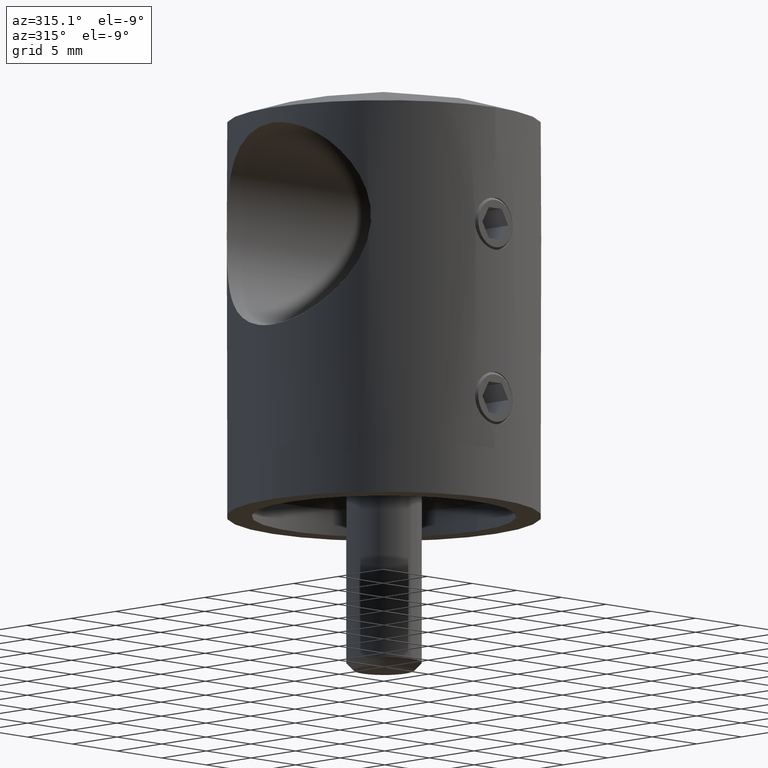
[diagram: clean part render]
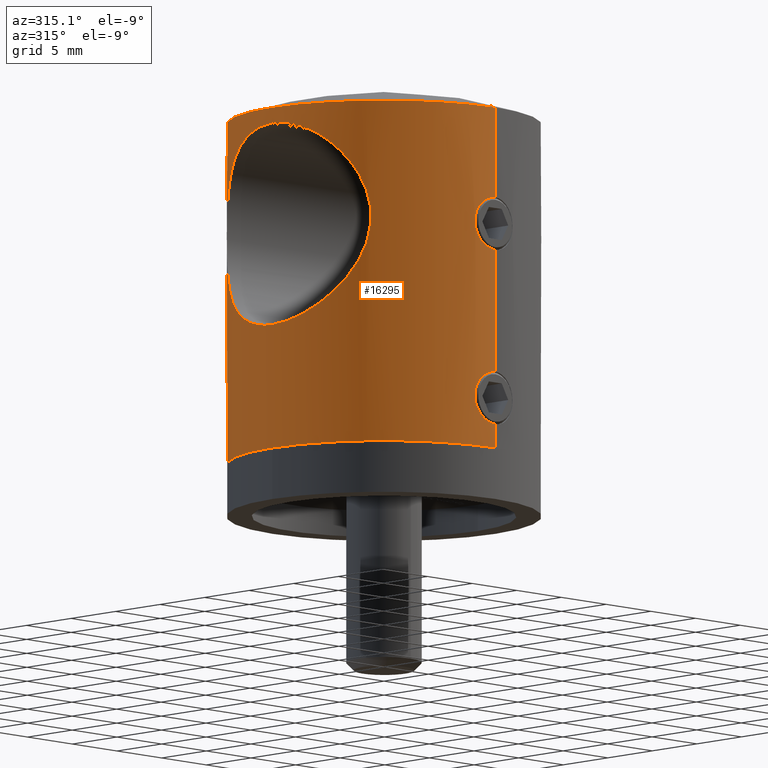
[diagram: same view with one face highlighted and labeled with its STEP entity id]
A machine part, auxiliary view. The second image highlights one B-rep face of the part: STEP entity #16295.
In plain terms, the highlighted cylindrical surface (partial cylindrical patch) has radius 12.5 mm, axis along (0, 0, -1).
Its self-contained STEP definition (entity closure, byte-faithful):
#40 = CARTESIAN_POINT ( 'NONE',  ( -12.22070116454564648, -2.675759442852999825, 10.33630604654240059 ) ) ;
#220 = CARTESIAN_POINT ( 'NONE',  ( -1.292831960822521387, -12.43448438498407072, 16.32272558053074363 ) ) ;
#372 = CARTESIAN_POINT ( 'NONE',  ( -10.72277615019983799, -6.433386929966105505, 22.94845093989070506 ) ) ;
#494 = CARTESIAN_POINT ( 'NONE',  ( 1.530808400947094187E-15, -12.50000000000000000, 20.09999999999998721 ) ) ;
#642 = LINE ( 'NONE', #7840, #19666 ) ;
#761 = CARTESIAN_POINT ( 'NONE',  ( 0.000000000000000000, 2.511058393382138300E-15, -3.469446951953614189E-15 ) ) ;
#877 = EDGE_LOOP ( 'NONE', ( #12330, #13773 ) ) ;
#1064 = CARTESIAN_POINT ( 'NONE',  ( -1.281603546142738415, -12.43465773738692448, 5.669267826619059036 ) ) ;
#1126 = CARTESIAN_POINT ( 'NONE',  ( -0.6802983101495034823, -12.48211517639015788, 2.008545626036335463 ) ) ;
#1187 = CARTESIAN_POINT ( 'NONE',  ( -1.992762697854679299, -12.34024839959371533, 3.323402791177527682 ) ) ;
#1228 = CARTESIAN_POINT ( 'NONE',  ( -1.669446844424485210, -12.38825472392713323, 19.28128412325600749 ) ) ;
#1301 = CARTESIAN_POINT ( 'NONE',  ( -12.02870553853695590, 3.409507870961614007, 25.35231208705370065 ) ) ;
#1349 = ORIENTED_EDGE ( 'NONE', *, *, #10191, .T. ) ;
#1364 = CARTESIAN_POINT ( 'NONE',  ( -9.951367014874429984, 7.565489801909766499, 15.09432320934741512 ) ) ;
#1489 = CARTESIAN_POINT ( 'NONE',  ( -9.701591336837370960, 7.882512463272437486, 16.11616671281910129 ) ) ;
#1532 = AXIS2_PLACEMENT_3D ( 'NONE', #761, #16381, #13219 ) ;
#1632 = CARTESIAN_POINT ( 'NONE',  ( -9.880370690349275620, -7.657572029206112241, 20.65384175088192720 ) ) ;
#1765 = CARTESIAN_POINT ( 'NONE',  ( -9.520085792176001149, -8.100491771003918373, 18.54183677624777005 ) ) ;
#1840 = CARTESIAN_POINT ( 'NONE',  ( -9.567435330464274301, -8.045733034332240408, 19.08221628877203102 ) ) ;
#2102 = VERTEX_POINT ( 'NONE', #4783 ) ;
#2382 = EDGE_CURVE ( 'NONE', #13660, #14748, #14000, .T. ) ;
#2520 = FACE_OUTER_BOUND ( 'NONE', #3515, .T. ) ;
#2523 = CARTESIAN_POINT ( 'NONE',  ( -0.5474908082748943805, -12.48874150837816188, 1.967912346927876310 ) ) ;
#2656 = CARTESIAN_POINT ( 'NONE',  ( -1.670798748957216473, -12.38807301078725409, 2.720435620869849025 ) ) ;
#2775 = CARTESIAN_POINT ( 'NONE',  ( -9.520973359971113936, 8.099448548831343686, 18.55185238678192761 ) ) ;
#2841 = CARTESIAN_POINT ( 'NONE',  ( -11.19526627058776391, 5.563968491168951758, 23.89224060950516915 ) ) ;
#2852 = CARTESIAN_POINT ( 'NONE',  ( -10.35700933999127038, -7.007021317796643167, 13.90412509189336632 ) ) ;
#2900 = CARTESIAN_POINT ( 'NONE',  ( -12.50000000000000000, -3.351643804085334193E-17, 9.899999999999998579 ) ) ;
#2918 = CARTESIAN_POINT ( 'NONE',  ( -12.49999999999999822, -0.5528784438871109375, 9.900000000000000355 ) ) ;
#2958 = CARTESIAN_POINT ( 'NONE',  ( -2.033241785620695907, -12.33355821179406320, 17.45712843739983811 ) ) ;
#2969 = CARTESIAN_POINT ( 'NONE',  ( -10.17952911167893504, 7.258907725143648015, 21.63223083296024640 ) ) ;
#3039 = CARTESIAN_POINT ( 'NONE',  ( -11.28850500002958235, 5.383832730285661228, 11.92646162018588107 ) ) ;
#3118 = CARTESIAN_POINT ( 'NONE',  ( -12.46351380821524657, -1.093711065827359663, 9.955989529528133986 ) ) ;
#3189 = CARTESIAN_POINT ( 'NONE',  ( -12.50000000000000000, 9.921802743039409202E-16, 26.09999999999999787 ) ) ;
#3392 = CARTESIAN_POINT ( 'NONE',  ( -11.72524645729331638, -4.338365169962789203, 24.84511145860963666 ) ) ;
#3515 = EDGE_LOOP ( 'NONE', ( #12781, #1349, #6579, #17195, #9411, #15858, #6282, #18544 ) ) ;
#3548 = VERTEX_POINT ( 'NONE', #12794 ) ;
#3940 = LINE ( 'NONE', #9890, #6581 ) ;
#4314 = CARTESIAN_POINT ( 'NONE',  ( -9.747884632849883602, 7.826158140951158693, 20.15828844926502939 ) ) ;
#4373 = CARTESIAN_POINT ( 'NONE',  ( -10.72008468265404701, 6.437815186178183602, 13.05742670192375776 ) ) ;
#4390 = CARTESIAN_POINT ( 'NONE',  ( -10.18366656129051684, -7.253124976668678059, 14.35630555257476537 ) ) ;
#4434 = CARTESIAN_POINT ( 'NONE',  ( -1.580836478937786005, -12.40001885819545713, 19.38913205608097812 ) ) ;
#4504 = CARTESIAN_POINT ( 'NONE',  ( -10.72337136915052191, 6.432384334378388857, 22.94970672417606750 ) ) ;
#4724 = CARTESIAN_POINT ( 'NONE',  ( -9.520717587152519812, -8.099749177061479344, 17.71812808805937678 ) ) ;
#4764 = CARTESIAN_POINT ( 'NONE',  ( -0.1389824923851660510, -12.49999999999999822, 15.89999999999999325 ) ) ;
#4783 = CARTESIAN_POINT ( 'NONE',  ( 1.530808498934191916E-15, -12.50000000000000355, 27.32456029873169356 ) ) ;
#4854 = CARTESIAN_POINT ( 'NONE',  ( -11.29218558167254471, -5.376423904100856355, 24.08051922992815719 ) ) ;
#4895 = CIRCLE ( 'NONE', #1532, 12.49999999999999822 ) ;
#4928 = CARTESIAN_POINT ( 'NONE',  ( -12.02760166335872505, -3.413435212782874206, 25.35050886855137620 ) ) ;
#4954 = LINE ( 'NONE', #13450, #10737 ) ;
#5591 = EDGE_CURVE ( 'NONE', #10698, #6878, #14404, .T. ) ;
#5610 = CARTESIAN_POINT ( 'NONE',  ( -2.033241785620692799, -12.33355821179406320, 3.457128437399843435 ) ) ;
#5748 = CARTESIAN_POINT ( 'NONE',  ( -1.059040836926602003, -12.45762628977003317, 2.166092215184475478 ) ) ;
#5808 = CARTESIAN_POINT ( 'NONE',  ( 1.530808400950249631E-15, -12.49999999999999822, 6.099999999999991651 ) ) ;
#5863 = CARTESIAN_POINT ( 'NONE',  ( -11.47028590896113265, 4.972980621955419345, 24.39895530642348831 ) ) ;
#5927 = CARTESIAN_POINT ( 'NONE',  ( -11.47046356455962979, 4.989251766208270489, 11.59772572849088590 ) ) ;
#5944 = CARTESIAN_POINT ( 'NONE',  ( -9.748972396418562170, -7.824788271344586654, 15.83832442540469465 ) ) ;
#5987 = CARTESIAN_POINT ( 'NONE',  ( -9.520042000924568981, 8.100543242096659213, 17.46445631841540447 ) ) ;
#6057 = CARTESIAN_POINT ( 'NONE',  ( -10.91395067144981468, 6.107510191931585730, 12.65473643547653637 ) ) ;
#6070 = LINE ( 'NONE', #11536, #18867 ) ;
#6121 = CARTESIAN_POINT ( 'NONE',  ( -12.46342989338710971, 1.097403203460833199, 9.956105301296767962 ) ) ;
#6282 = ORIENTED_EDGE ( 'NONE', *, *, #10936, .F. ) ;
#6334 = CARTESIAN_POINT ( 'NONE',  ( -9.950403799970377605, -7.566749653861295499, 20.90234311726210237 ) ) ;
#6472 = CARTESIAN_POINT ( 'NONE',  ( -12.50000000000000711, -0.2724670366685521539, 26.10000000000000853 ) ) ;
#6540 = CARTESIAN_POINT ( 'NONE',  ( -10.91406870405932850, -6.107576731453589147, 23.34566689679782314 ) ) ;
#6579 = ORIENTED_EDGE ( 'NONE', *, *, #14859, .T. ) ;
#6581 = VECTOR ( 'NONE', #19268, 1000.000000000000000 ) ;
#6649 = DIRECTION ( 'NONE',  ( 0.000000000000000000, 1.000000000000000000, 2.775557561562891351E-16 ) ) ;
#6675 = CARTESIAN_POINT ( 'NONE',  ( -1.472924517894627525E-17, -12.49999999999999822, 1.900000000000005018 ) ) ;
#6794 = CARTESIAN_POINT ( 'NONE',  ( 1.530808498934191521E-15, -12.49999999999999645, -5.213237502913431292E-15 ) ) ;
#6862 = CYLINDRICAL_SURFACE ( 'NONE', #7258, 12.50000000000000000 ) ;
#6878 = VERTEX_POINT ( 'NONE', #11653 ) ;
#7239 = CARTESIAN_POINT ( 'NONE',  ( -1.387160506701218265, -12.42317581721323094, 5.582566766686510640 ) ) ;
#7258 = AXIS2_PLACEMENT_3D ( 'NONE', #11446, #11245, #15988 ) ;
#7303 = CARTESIAN_POINT ( 'NONE',  ( -1.821665953450995801, -12.36678782163335732, 5.053695840792909344 ) ) ;
#7369 = CARTESIAN_POINT ( 'NONE',  ( -1.992047017919823970, -12.34036526571288128, 4.678775810402825641 ) ) ;
#7409 = CARTESIAN_POINT ( 'NONE',  ( -2.086551808546024844, -12.32465138950227335, 17.72598678402805561 ) ) ;
#7423 = DIRECTION ( 'NONE',  ( -0.000000000000000000, 1.395032440767854392E-16, -1.000000000000000000 ) ) ;
#7450 = EDGE_CURVE ( 'NONE', #2102, #13660, #642, .T. ) ;
#7475 = CARTESIAN_POINT ( 'NONE',  ( -11.95753491745220209, 3.650557408356767120, 25.23552915202265368 ) ) ;
#7544 = CARTESIAN_POINT ( 'NONE',  ( -11.55808065896021652, 4.765924682120230571, 24.55465348153382266 ) ) ;
#7675 = CARTESIAN_POINT ( 'NONE',  ( -10.35676433114384487, 7.007402823801430536, 22.09529859051693634 ) ) ;
#7803 = CARTESIAN_POINT ( 'NONE',  ( -1.823189292361670155, -12.36656387944243995, 16.94888903341583841 ) ) ;
#7840 = CARTESIAN_POINT ( 'NONE',  ( 1.530808498934191521E-15, -12.50000000000000000, 17.99999999999999645 ) ) ;
#7920 = DIRECTION ( 'NONE',  ( -0.000000000000000000, 1.395032440767854392E-16, -1.000000000000000000 ) ) ;
#7969 = DIRECTION ( 'NONE',  ( -0.000000000000000000, 1.395032440767854392E-16, -1.000000000000000000 ) ) ;
#8018 = CARTESIAN_POINT ( 'NONE',  ( -12.45529628258914556, -1.091060948458979496, 26.03086874605837409 ) ) ;
#8759 = CARTESIAN_POINT ( 'NONE',  ( 1.151064588017623482E-15, -12.50000000000000000, 15.89999999999999680 ) ) ;
#8763 = EDGE_CURVE ( 'NONE', #18632, #13263, #9858, .T. ) ;
#8831 = CARTESIAN_POINT ( 'NONE',  ( -1.887587319264240504, -12.35677335900392393, 3.069461948601636792 ) ) ;
#8889 = CARTESIAN_POINT ( 'NONE',  ( 1.530808400950249631E-15, -12.49999999999999822, 6.099999999999991651 ) ) ;
#8944 = CARTESIAN_POINT ( 'NONE',  ( -10.18033033413549227, 7.257839893384701035, 14.36515003058661755 ) ) ;
#9000 = EDGE_CURVE ( 'NONE', #6878, #10698, #11421, .T. ) ;
#9090 = CARTESIAN_POINT ( 'NONE',  ( -9.876153600626508933, 7.666560138321562690, 20.66621413835348875 ) ) ;
#9148 = CARTESIAN_POINT ( 'NONE',  ( -12.49112763227392442, 0.5438777286051759141, 26.08632855439660503 ) ) ;
#9382 = AXIS2_PLACEMENT_3D ( 'NONE', #14277, #7920, #6649 ) ;
#9411 = ORIENTED_EDGE ( 'NONE', *, *, #19764, .F. ) ;
#9569 = CARTESIAN_POINT ( 'NONE',  ( -10.17867724942867014, -7.260129053857307113, 21.63011152713685448 ) ) ;
#9635 = CARTESIAN_POINT ( 'NONE',  ( -9.580336641796414199, -8.029227403483567116, 16.89725103376263249 ) ) ;
#9716 = CARTESIAN_POINT ( 'NONE',  ( 0.000000000000000000, 12.49999999999999822, 27.32456029873170067 ) ) ;
#9858 = B_SPLINE_CURVE_WITH_KNOTS ( 'NONE', 3,
 ( #8889, #13517, #11949, #19766, #19509, #1064, #7239, #16675, #10529, #7303, #14867, #7369, #10397, #14930, #14998, #11760, #18136, #5610, #1187, #8831, #13325, #2656, #15128, #11823, #5748, #1126, #2523, #16546, #18207, #15062 ),
 .UNSPECIFIED., .F., .F.,
 ( 4, 2, 2, 2, 2, 2, 2, 2, 2, 2, 2, 2, 2, 2, 4 ),
 ( 0.006577226265834314883, 0.007399174158320370384, 0.007810148104563397267, 0.008221122050806424150, 0.008632095997049452768, 0.009043069943292479651, 0.009454043889535506534, 0.009865017835778533417, 0.01027599178202156030, 0.01068696572826458718, 0.01109793967450761233, 0.01150891362075063748, 0.01233086151323669125, 0.01274183545947971639, 0.01315280940572274154 ),
 .UNSPECIFIED. ) ;
#9890 = CARTESIAN_POINT ( 'NONE',  ( 1.530808498934191521E-15, -12.50000000000000000, 17.99999999999999645 ) ) ;
#10191 = EDGE_CURVE ( 'NONE', #2102, #19150, #18628, .T. ) ;
#10373 = CARTESIAN_POINT ( 'NONE',  ( -0.2743003893079631328, -12.50000000000000178, 20.09999999999998366 ) ) ;
#10397 = CARTESIAN_POINT ( 'NONE',  ( -2.032484663200841979, -12.33368337160503891, 4.545663143699836262 ) ) ;
#10437 = CARTESIAN_POINT ( 'NONE',  ( -1.052645575539822076, -12.45612933409646672, 19.82233367382803380 ) ) ;
#10512 = CARTESIAN_POINT ( 'NONE',  ( -12.22154858838973190, 2.672405942506479892, 25.66506322666648643 ) ) ;
#10529 = CARTESIAN_POINT ( 'NONE',  ( -1.669446844424482990, -12.38825472392712967, 5.281284123256015484 ) ) ;
#10570 = CARTESIAN_POINT ( 'NONE',  ( -12.35767926092468727, 1.900159969238719881, 10.12129287128905197 ) ) ;
#10628 = CARTESIAN_POINT ( 'NONE',  ( -2.099916014006710352, -12.32235175367555513, 18.14000245874222372 ) ) ;
#10698 = VERTEX_POINT ( 'NONE', #3189 ) ;
#10737 = VECTOR ( 'NONE', #7423, 1000.000000000000000 ) ;
#10779 = CARTESIAN_POINT ( 'NONE',  ( -12.32358639111075149, 2.160796334112375483, 25.82546165938043714 ) ) ;
#10792 = CARTESIAN_POINT ( 'NONE',  ( -10.91686002276924761, -6.102307794144014252, 12.64883266267916362 ) ) ;
#10923 = CARTESIAN_POINT ( 'NONE',  ( -12.32307737004344261, -2.163398512750481562, 25.82466021064913875 ) ) ;
#10936 = EDGE_CURVE ( 'NONE', #14748, #18632, #6070, .T. ) ;
#10971 = CARTESIAN_POINT ( 'NONE',  ( -0.2762664775608866807, -12.49768328457756006, 15.91366271943153698 ) ) ;
#11055 = CARTESIAN_POINT ( 'NONE',  ( -9.700917027979015117, -7.883344374810546284, 19.88059418987725735 ) ) ;
#11245 = DIRECTION ( 'NONE',  ( -0.000000000000000000, 1.395032440767854392E-16, -1.000000000000000000 ) ) ;
#11421 = B_SPLINE_CURVE_WITH_KNOTS ( 'NONE', 3,
 ( #19830, #2918, #3118, #13915, #40, #13711, #16934, #15462, #13651, #10792, #18535, #2852, #4390, #15189, #5944, #16734, #9635, #14119, #4724, #1765, #1840, #11055, #12612, #1632, #6334, #9569, #18880, #372, #6540, #4854, #12416, #3392, #14187, #17137, #4928, #18747, #10923, #13980, #8018, #15733, #6472, #15528 ),
 .UNSPECIFIED., .F., .F.,
 ( 4, 2, 2, 2, 2, 2, 2, 2, 2, 2, 2, 2, 2, 2, 2, 2, 2, 2, 2, 2, 4 ),
 ( 3.246168408128702172E-20, 0.001632328287734290118, 0.003264656575468579368, 0.004896984863202869485, 0.006529313150937157868, 0.008161641438671447119, 0.009793969726405738971, 0.01142629801414002735, 0.01224246215800717762, 0.01305862630187432614, 0.01469095458960861279, 0.01550711873347576132, 0.01632328287734291158, 0.01795561116507721905, 0.01958793945281152998, 0.02122026774054584092, 0.02203643188441299985, 0.02285259602828015185, 0.02448492431601445932, 0.02530108845988160785, 0.02611725260374876331 ),
 .UNSPECIFIED. ) ;
#11446 = CARTESIAN_POINT ( 'NONE',  ( 0.000000000000000000, 0.000000000000000000, 18.00000000000000000 ) ) ;
#11536 = CARTESIAN_POINT ( 'NONE',  ( 1.530808498934191521E-15, -12.50000000000000000, 17.99999999999999645 ) ) ;
#11606 = DIRECTION ( 'NONE',  ( -0.000000000000000000, 1.395032440767854392E-16, -1.000000000000000000 ) ) ;
#11653 = CARTESIAN_POINT ( 'NONE',  ( -12.50000000000000000, -3.351643804085334193E-17, 9.899999999999998579 ) ) ;
#11760 = CARTESIAN_POINT ( 'NONE',  ( -2.100083223394550558, -12.32232325748717905, 3.862528515129717288 ) ) ;
#11823 = CARTESIAN_POINT ( 'NONE',  ( -1.292831960822520276, -12.43448438498407072, 2.322725580530750289 ) ) ;
#11949 = CARTESIAN_POINT ( 'NONE',  ( -0.5510555997337217571, -12.49041604070636780, 6.044797116518989100 ) ) ;
#11985 = CARTESIAN_POINT ( 'NONE',  ( -1.886269248244664576, -12.35697594623954920, 18.93326108111170214 ) ) ;
#11995 = CARTESIAN_POINT ( 'NONE',  ( -11.72613561294977025, 4.336013166652543660, 24.84664225421791528 ) ) ;
#12053 = CARTESIAN_POINT ( 'NONE',  ( -0.9302022205380889863, -12.46598422166854370, 19.88770713018109149 ) ) ;
#12059 = CARTESIAN_POINT ( 'NONE',  ( -12.50000000000000000, 9.921802743039409202E-16, 26.09999999999999787 ) ) ;
#12129 = CARTESIAN_POINT ( 'NONE',  ( -12.50000000000000178, 0.5520462798414251804, 9.899999999999996803 ) ) ;
#12193 = CARTESIAN_POINT ( 'NONE',  ( -2.100083223394554111, -12.32232325748718260, 17.86252851512971773 ) ) ;
#12201 = CARTESIAN_POINT ( 'NONE',  ( -12.42869573539206307, 1.360138927175486234, 25.98963358632725829 ) ) ;
#12264 = CARTESIAN_POINT ( 'NONE',  ( -9.755670522168493619, 7.815819515107556903, 15.85656383207582287 ) ) ;
#12330 = ORIENTED_EDGE ( 'NONE', *, *, #9000, .F. ) ;
#12391 = CARTESIAN_POINT ( 'NONE',  ( -1.670798748957218027, -12.38807301078725587, 16.72043562086984281 ) ) ;
#12416 = CARTESIAN_POINT ( 'NONE',  ( -11.47415152566536456, -4.980473280214815723, 24.40880166801929363 ) ) ;
#12612 = CARTESIAN_POINT ( 'NONE',  ( -9.755755582469779696, -7.815712851448844312, 20.14380923705941484 ) ) ;
#12781 = ORIENTED_EDGE ( 'NONE', *, *, #7450, .F. ) ;
#12794 = CARTESIAN_POINT ( 'NONE',  ( 0.000000000000000000, 12.50000000000000000, -1.725656400993796494E-15 ) ) ;
#13219 = DIRECTION ( 'NONE',  ( 0.000000000000000000, 1.000000000000000000, 1.395032440767854392E-16 ) ) ;
#13263 = VERTEX_POINT ( 'NONE', #6675 ) ;
#13325 = CARTESIAN_POINT ( 'NONE',  ( -1.823189292361667713, -12.36656387944243463, 2.948889033415838856 ) ) ;
#13450 = CARTESIAN_POINT ( 'NONE',  ( 0.000000000000000000, 12.50000000000000000, 18.00000000000000355 ) ) ;
#13496 = CARTESIAN_POINT ( 'NONE',  ( -0.5510555997337218681, -12.49041604070636780, 20.04479711651898199 ) ) ;
#13517 = CARTESIAN_POINT ( 'NONE',  ( -0.2743003893079629663, -12.50000000000000178, 6.099999999999992539 ) ) ;
#13567 = CARTESIAN_POINT ( 'NONE',  ( -9.568298830503607633, 8.044728929722264610, 19.09054881811709237 ) ) ;
#13651 = CARTESIAN_POINT ( 'NONE',  ( -11.29106218945797835, -5.378467049727133187, 11.92174001201991729 ) ) ;
#13660 = VERTEX_POINT ( 'NONE', #494 ) ;
#13688 = CARTESIAN_POINT ( 'NONE',  ( -1.281603546142741301, -12.43465773738692270, 19.66926782661904838 ) ) ;
#13711 = CARTESIAN_POINT ( 'NONE',  ( -11.96490898092270605, -3.653242207598545122, 10.75115767995329108 ) ) ;
#13754 = CARTESIAN_POINT ( 'NONE',  ( -1.992762697854682408, -12.34024839959371356, 17.32340279117751791 ) ) ;
#13761 = CARTESIAN_POINT ( 'NONE',  ( -12.45561756411089327, 1.087043516167605528, 26.03136656287586348 ) ) ;
#13773 = ORIENTED_EDGE ( 'NONE', *, *, #5591, .F. ) ;
#13915 = CARTESIAN_POINT ( 'NONE',  ( -12.32475623888217697, -2.153082440414252119, 10.17270517040823208 ) ) ;
#13980 = CARTESIAN_POINT ( 'NONE',  ( -12.42819789938510588, -1.364561915774261225, 25.98885917464377826 ) ) ;
#14000 = B_SPLINE_CURVE_WITH_KNOTS ( 'NONE', 3,
 ( #16589, #10373, #13496, #12053, #10437, #13688, #15168, #4434, #1228, #18309, #11985, #16651, #15105, #19873, #10628, #12193, #7409, #2958, #13754, #15505, #7803, #12391, #18380, #220, #15370, #17114, #14024, #10971, #4764, #15577 ),
 .UNSPECIFIED., .F., .F.,
 ( 4, 2, 2, 2, 2, 2, 2, 2, 2, 2, 2, 2, 2, 2, 4 ),
 ( 0.006577226265834307077, 0.007399174158320359108, 0.007810148104563386859, 0.008221122050806413742, 0.008632095997049442360, 0.009043069943292469243, 0.009454043889535497860, 0.009865017835778526478, 0.01027599178202155336, 0.01068696572826458198, 0.01109793967450761060, 0.01150891362075063748, 0.01233086151323668604, 0.01274183545947971119, 0.01315280940572273807 ),
 .UNSPECIFIED. ) ;
#14024 = CARTESIAN_POINT ( 'NONE',  ( -0.5474908082748946025, -12.48874150837816721, 15.96791234692787675 ) ) ;
#14119 = CARTESIAN_POINT ( 'NONE',  ( -9.533095215835645675, -8.085260569258725383, 17.44043811193119353 ) ) ;
#14187 = CARTESIAN_POINT ( 'NONE',  ( -11.80531911616417240, -4.116239418310658316, 24.98110203518436734 ) ) ;
#14277 = CARTESIAN_POINT ( 'NONE',  ( 0.000000000000000000, -1.300806411262671261E-15, 27.32456029873169712 ) ) ;
#14404 = B_SPLINE_CURVE_WITH_KNOTS ( 'NONE', 3,
 ( #12059, #15114, #9148, #13761, #12201, #10779, #10512, #1301, #7475, #16919, #11995, #7544, #5863, #15311, #2841, #18389, #4504, #7675, #2969, #9090, #4314, #13567, #2775, #5987, #16658, #1489, #12264, #16788, #1364, #8944, #19880, #4373, #6057, #3039, #5927, #15240, #16849, #18255, #16718, #19810, #19944, #15381, #10570, #6121, #12129, #2900 ),
 .UNSPECIFIED., .F., .F.,
 ( 4, 2, 2, 2, 2, 2, 2, 2, 2, 2, 2, 2, 2, 2, 2, 2, 2, 2, 2, 2, 2, 2, 4 ),
 ( 0.02611725260374876331, 0.02693218829954849985, 0.02774712399534823640, 0.02937699538694770948, 0.03019193108274744949, 0.03100686677854718604, 0.03182180247434692605, 0.03263673817014666606, 0.03426660956174613915, 0.03589648095334561223, 0.03752635234494508532, 0.03915622373654455840, 0.04078609512814403149, 0.04160103082394377844, 0.04241596651974351151, 0.04404583791134299153, 0.04567570930294247156, 0.04730558069454195158, 0.04812051639034169853, 0.04893545208614143160, 0.04975038778194117856, 0.05056532347774091163, 0.05219519486934039859 ),
 .UNSPECIFIED. ) ;
#14748 = VERTEX_POINT ( 'NONE', #8759 ) ;
#14859 = EDGE_CURVE ( 'NONE', #19150, #3548, #4954, .T. ) ;
#14867 = CARTESIAN_POINT ( 'NONE',  ( -1.886269248244663466, -12.35697594623954743, 4.933261081111703916 ) ) ;
#14930 = CARTESIAN_POINT ( 'NONE',  ( -2.086126021674022279, -12.32472383621019851, 4.277164922444294248 ) ) ;
#14998 = CARTESIAN_POINT ( 'NONE',  ( -2.099916014006708131, -12.32235175367555158, 4.140002458742224611 ) ) ;
#15060 = FACE_BOUND ( 'NONE', #877, .T. ) ;
#15062 = CARTESIAN_POINT ( 'NONE',  ( -1.472924517894627525E-17, -12.49999999999999822, 1.900000000000005018 ) ) ;
#15105 = CARTESIAN_POINT ( 'NONE',  ( -2.032484663200844199, -12.33368337160504247, 18.54566314369983004 ) ) ;
#15114 = CARTESIAN_POINT ( 'NONE',  ( -12.49999999999999645, 0.2720569333735955442, 26.09999999999999787 ) ) ;
#15128 = CARTESIAN_POINT ( 'NONE',  ( -1.582460249035300137, -12.39980942031196420, 2.612741714926292147 ) ) ;
#15168 = CARTESIAN_POINT ( 'NONE',  ( -1.387160506701220264, -12.42317581721322917, 19.58256676668649376 ) ) ;
#15189 = CARTESIAN_POINT ( 'NONE',  ( -9.879722448543166280, -7.661982178162123347, 15.32075378979487645 ) ) ;
#15240 = CARTESIAN_POINT ( 'NONE',  ( -11.72360578016522226, 4.342880312005186205, 11.15768110549079317 ) ) ;
#15311 = CARTESIAN_POINT ( 'NONE',  ( -11.28897980041874050, 5.371864682342061492, 24.06796795595984406 ) ) ;
#15370 = CARTESIAN_POINT ( 'NONE',  ( -1.059040836926602225, -12.45762628977003139, 16.16609221518446660 ) ) ;
#15381 = CARTESIAN_POINT ( 'NONE',  ( -12.31385491636070029, 2.165044730195927691, 10.19007553560398627 ) ) ;
#15462 = CARTESIAN_POINT ( 'NONE',  ( -11.47347012154552104, -4.982651548008703912, 11.59230320546175008 ) ) ;
#15505 = CARTESIAN_POINT ( 'NONE',  ( -1.887587319264243835, -12.35677335900392926, 17.06946194860163857 ) ) ;
#15528 = CARTESIAN_POINT ( 'NONE',  ( -12.50000000000000000, 9.921802743039409202E-16, 26.09999999999999787 ) ) ;
#15577 = CARTESIAN_POINT ( 'NONE',  ( 1.151064588017623482E-15, -12.50000000000000000, 15.89999999999999680 ) ) ;
#15733 = CARTESIAN_POINT ( 'NONE',  ( -12.49110115871714832, -0.5451709117573698693, 26.08628811548556570 ) ) ;
#15858 = ORIENTED_EDGE ( 'NONE', *, *, #8763, .F. ) ;
#15988 = DIRECTION ( 'NONE',  ( 0.000000000000000000, 1.000000000000000000, 2.775557561562891351E-16 ) ) ;
#16295 = ADVANCED_FACE ( 'NONE', ( #2520, #15060 ), #6862, .T. ) ;
#16381 = DIRECTION ( 'NONE',  ( -0.000000000000000000, 1.395032440767854392E-16, -1.000000000000000000 ) ) ;
#16546 = CARTESIAN_POINT ( 'NONE',  ( -0.2762664775608871248, -12.49768328457755828, 1.913662719431547421 ) ) ;
#16589 = CARTESIAN_POINT ( 'NONE',  ( 1.530808400947094187E-15, -12.50000000000000000, 20.09999999999998721 ) ) ;
#16651 = CARTESIAN_POINT ( 'NONE',  ( -1.992047017919824636, -12.34036526571288306, 18.67877581040281854 ) ) ;
#16658 = CARTESIAN_POINT ( 'NONE',  ( -9.568569244901517834, 8.044376384039832573, 16.90943549386268430 ) ) ;
#16675 = CARTESIAN_POINT ( 'NONE',  ( -1.580836478937784229, -12.40001885819544825, 5.389132056080978117 ) ) ;
#16718 = CARTESIAN_POINT ( 'NONE',  ( -12.02679822803973408, 3.416090709427561656, 10.65081266776297575 ) ) ;
#16734 = CARTESIAN_POINT ( 'NONE',  ( -9.615099075722453037, -7.987791517898862104, 16.62969898858812456 ) ) ;
#16788 = CARTESIAN_POINT ( 'NONE',  ( -9.880334013773675039, 7.657619852546254435, 15.34628345662332016 ) ) ;
#16849 = CARTESIAN_POINT ( 'NONE',  ( -11.80508178603171565, 4.116968738876153111, 11.01929435217254571 ) ) ;
#16919 = CARTESIAN_POINT ( 'NONE',  ( -11.80640174314149604, 4.113160411817490925, 24.98293369065865122 ) ) ;
#16934 = CARTESIAN_POINT ( 'NONE',  ( -11.81273853583448386, -4.114187813272790706, 11.00293966749414665 ) ) ;
#17114 = CARTESIAN_POINT ( 'NONE',  ( -0.6802983101495025942, -12.48211517639016677, 16.00854562603632658 ) ) ;
#17137 = CARTESIAN_POINT ( 'NONE',  ( -11.95630330996560531, -3.654558460803599917, 25.23349258872078593 ) ) ;
#17195 = ORIENTED_EDGE ( 'NONE', *, *, #19742, .F. ) ;
#17974 = VERTEX_POINT ( 'NONE', #6794 ) ;
#18136 = CARTESIAN_POINT ( 'NONE',  ( -2.086551808546021736, -12.32465138950226979, 3.725986784028060050 ) ) ;
#18207 = CARTESIAN_POINT ( 'NONE',  ( -0.1389824923851664118, -12.49999999999999822, 1.900000000000005018 ) ) ;
#18255 = CARTESIAN_POINT ( 'NONE',  ( -11.95657642635678108, 3.653719711810223369, 10.76605120241903180 ) ) ;
#18309 = CARTESIAN_POINT ( 'NONE',  ( -1.821665953450997355, -12.36678782163336088, 19.05369584079290135 ) ) ;
#18380 = CARTESIAN_POINT ( 'NONE',  ( -1.582460249035302580, -12.39980942031196420, 16.61274171492629037 ) ) ;
#18389 = CARTESIAN_POINT ( 'NONE',  ( -10.91357912058285073, 6.108250137240769817, 23.34455417644814545 ) ) ;
#18535 = CARTESIAN_POINT ( 'NONE',  ( -10.72318549548232802, -6.432673087154400449, 13.05073177482634250 ) ) ;
#18544 = ORIENTED_EDGE ( 'NONE', *, *, #2382, .F. ) ;
#18628 = CIRCLE ( 'NONE', #9382, 12.50000000000000000 ) ;
#18632 = VERTEX_POINT ( 'NONE', #5808 ) ;
#18747 = CARTESIAN_POINT ( 'NONE',  ( -12.22101742506993460, -2.675014017406148970, 25.66422744448221849 ) ) ;
#18867 = VECTOR ( 'NONE', #11606, 1000.000000000000000 ) ;
#18880 = CARTESIAN_POINT ( 'NONE',  ( -10.35589520320698753, -7.008696761748764992, 22.09314106732425387 ) ) ;
#19150 = VERTEX_POINT ( 'NONE', #9716 ) ;
#19268 = DIRECTION ( 'NONE',  ( -0.000000000000000000, 1.395032440767854392E-16, -1.000000000000000000 ) ) ;
#19509 = CARTESIAN_POINT ( 'NONE',  ( -1.052645575539819633, -12.45612933409646494, 5.822333673828040013 ) ) ;
#19666 = VECTOR ( 'NONE', #7969, 1000.000000000000000 ) ;
#19742 = EDGE_CURVE ( 'NONE', #17974, #3548, #4895, .T. ) ;
#19764 = EDGE_CURVE ( 'NONE', #13263, #17974, #3940, .T. ) ;
#19766 = CARTESIAN_POINT ( 'NONE',  ( -0.9302022205380885422, -12.46598422166854725, 5.887707130181111026 ) ) ;
#19810 = CARTESIAN_POINT ( 'NONE',  ( -12.15475101984846873, 2.928408953426678174, 10.44323804921440590 ) ) ;
#19830 = CARTESIAN_POINT ( 'NONE',  ( -12.50000000000000000, -3.351643804085334193E-17, 9.899999999999998579 ) ) ;
#19873 = CARTESIAN_POINT ( 'NONE',  ( -2.086126021674023612, -12.32472383621019851, 18.27716492244428892 ) ) ;
#19880 = CARTESIAN_POINT ( 'NONE',  ( -10.35414406946437538, 7.011232456810716052, 13.91134317717827429 ) ) ;
#19944 = CARTESIAN_POINT ( 'NONE',  ( -12.21248697414113238, 2.678358357532240941, 10.35089970441243601 ) ) ;